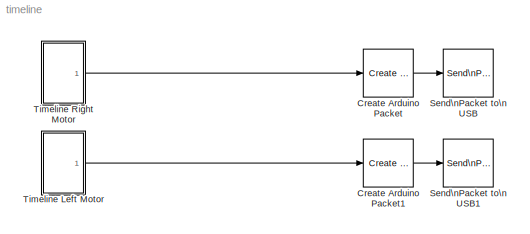
MODEL timeline
KIND model
BLOCK [Reference] Create Arduino Packet  REF=Nokia_Arduino_Blocks/Create Arduino Packet
  FunctionWithSeparateData = off
  Ports = [1, 1]
  RTWMemSecDataConstants = Inherit from model
  RTWMemSecDataInternal = Inherit from model
  RTWMemSecDataParameters = Inherit from model
  RTWMemSecFuncExecute = Inherit from model
  RTWMemSecFuncInitTerm = Inherit from model
  SID = 28
  ShowPortLabels = FromPortIcon
  SourceBlock = Nokia_Arduino_Blocks/Create Arduino Packet
  SystemSampleTime = -1
  command = Motor
  numPort = 1
  rOrW = Write
BLOCK [Reference] Create Arduino Packet1  REF=Nokia_Arduino_Blocks/Create Arduino Packet
  FunctionWithSeparateData = off
  Ports = [1, 1]
  RTWMemSecDataConstants = Inherit from model
  RTWMemSecDataInternal = Inherit from model
  RTWMemSecDataParameters = Inherit from model
  RTWMemSecFuncExecute = Inherit from model
  RTWMemSecFuncInitTerm = Inherit from model
  SID = 50
  ShowPortLabels = FromPortIcon
  SourceBlock = Nokia_Arduino_Blocks/Create Arduino Packet
  SystemSampleTime = -1
  command = Motor
  numPort = 2
  rOrW = Write
BLOCK [Reference] Send\nPacket to\n USB  REF=Nokia_Arduino_Blocks/Send\nPacket to\n USB
  Ports = [1]
  SID = 29
  SourceBlock = Nokia_Arduino_Blocks/Send\nPacket to\n USB
BLOCK [Reference] Send\nPacket to\n USB1  REF=Nokia_Arduino_Blocks/Send\nPacket to\n USB
  Ports = [1]
  SID = 51
  SourceBlock = Nokia_Arduino_Blocks/Send\nPacket to\n USB
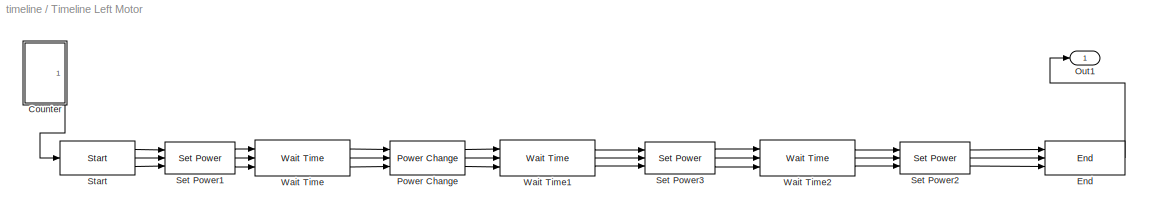
BLOCK [SubSystem] Timeline Left Motor
  FunctionWithSeparateData = off
  MaskHideContents = off
  MinAlgLoopOccurrences = off
  Opaque = off
  Ports = [0, 1]
  PropExecContextOutsideSubsystem = off
  RTWSystemCode = Auto
  RequestExecContextInheritance = off
  SID = 34
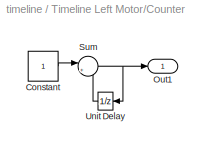
BLOCK [SubSystem] Timeline Left Motor/Counter
  FunctionWithSeparateData = off
  MaskHideContents = off
  MinAlgLoopOccurrences = off
  Opaque = off
  Ports = [0, 1]
  PropExecContextOutsideSubsystem = off
  RTWSystemCode = Auto
  RequestExecContextInheritance = off
  SID = 35
BLOCK [Constant] Timeline Left Motor/Counter/Constant
  OutDataType = fixdt(1, 16)
  OutScaling = 2^0
  SID = 36
BLOCK [Outport] Timeline Left Motor/Counter/Out1
  IconDisplay = Port number
  SID = 39
BLOCK [Sum] Timeline Left Motor/Counter/Sum
  IconShape = round
  InputSameDT = off
  Inputs = |++
  OutDataType = fixdt(1, 16)
  OutDataTypeMode = Inherit via internal rule
  OutDataTypeStr = Inherit: Inherit via internal rule
  OutScaling = 2^0
  Ports = [2, 1]
  SID = 37
  SaturateOnIntegerOverflow = off
BLOCK [UnitDelay] Timeline Left Motor/Counter/Unit Delay
  SID = 38
  SampleTime = -1
BLOCK [Reference] Timeline Left Motor/End  REF=nxt_Lib/End
  FunctionWithSeparateData = off
  Ports = [3, 1]
  RTWMemSecDataConstants = Inherit from model
  RTWMemSecDataInternal = Inherit from model
  RTWMemSecDataParameters = Inherit from model
  RTWMemSecFuncExecute = Inherit from model
  RTWMemSecFuncInitTerm = Inherit from model
  SID = 40
  ShowPortLabels = FromPortIcon
  SourceBlock = nxt_Lib/End
  SourceType = End Program
  SystemSampleTime = -1
BLOCK [Outport] Timeline Left Motor/Out1
  IconDisplay = Port number
  SID = 49
BLOCK [Reference] Timeline Left Motor/Power Change  REF=nxt_Lib/Power Change
  FunctionWithSeparateData = off
  Ports = [3, 3]
  RTWMemSecDataConstants = Inherit from model
  RTWMemSecDataInternal = Inherit from model
  RTWMemSecDataParameters = Inherit from model
  RTWMemSecFuncExecute = Inherit from model
  RTWMemSecFuncInitTerm = Inherit from model
  SID = 41
  ShowPortLabels = FromPortIcon
  SourceBlock = nxt_Lib/Power Change
  SourceType = Power Change
  SystemSampleTime = -1
  c = -255
BLOCK [Reference] Timeline Left Motor/Set Power1  REF=nxt_Lib/Set Power
  FunctionWithSeparateData = off
  Ports = [3, 3]
  RTWMemSecDataConstants = Inherit from model
  RTWMemSecDataInternal = Inherit from model
  RTWMemSecDataParameters = Inherit from model
  RTWMemSecFuncExecute = Inherit from model
  RTWMemSecFuncInitTerm = Inherit from model
  SID = 42
  ShowPortLabels = FromPortIcon
  SourceBlock = nxt_Lib/Set Power
  SourceType = Set Power
  SystemSampleTime = -1
  a = 512
BLOCK [Reference] Timeline Left Motor/Set Power2  REF=nxt_Lib/Set Power
  FunctionWithSeparateData = off
  Ports = [3, 3]
  RTWMemSecDataConstants = Inherit from model
  RTWMemSecDataInternal = Inherit from model
  RTWMemSecDataParameters = Inherit from model
  RTWMemSecFuncExecute = Inherit from model
  RTWMemSecFuncInitTerm = Inherit from model
  SID = 43
  ShowPortLabels = FromPortIcon
  SourceBlock = nxt_Lib/Set Power
  SourceType = Set Power
  SystemSampleTime = -1
  a = 255
BLOCK [Reference] Timeline Left Motor/Set Power3  REF=nxt_Lib/Set Power
  FunctionWithSeparateData = off
  Ports = [3, 3]
  RTWMemSecDataConstants = Inherit from model
  RTWMemSecDataInternal = Inherit from model
  RTWMemSecDataParameters = Inherit from model
  RTWMemSecFuncExecute = Inherit from model
  RTWMemSecFuncInitTerm = Inherit from model
  SID = 44
  ShowPortLabels = FromPortIcon
  SourceBlock = nxt_Lib/Set Power
  SourceType = Set Power
  SystemSampleTime = -1
  a = 512
BLOCK [Reference] Timeline Left Motor/Start  REF=nxt_Lib/Start
  FunctionWithSeparateData = off
  Ports = [1, 3]
  RTWMemSecDataConstants = Inherit from model
  RTWMemSecDataInternal = Inherit from model
  RTWMemSecDataParameters = Inherit from model
  RTWMemSecFuncExecute = Inherit from model
  RTWMemSecFuncInitTerm = Inherit from model
  SID = 45
  ShowPortLabels = FromPortIcon
  SourceBlock = nxt_Lib/Start
  SourceType = Start
  SystemSampleTime = -1
BLOCK [Reference] Timeline Left Motor/Wait Time  REF=nxt_Lib/Wait Time
  FunctionWithSeparateData = off
  Ports = [3, 3]
  RTWMemSecDataConstants = Inherit from model
  RTWMemSecDataInternal = Inherit from model
  RTWMemSecDataParameters = Inherit from model
  RTWMemSecFuncExecute = Inherit from model
  RTWMemSecFuncInitTerm = Inherit from model
  SID = 46
  ShowPortLabels = FromPortIcon
  SourceBlock = nxt_Lib/Wait Time
  SourceType = Wait Time
  SystemSampleTime = -1
  b = 4
BLOCK [Reference] Timeline Left Motor/Wait Time1  REF=nxt_Lib/Wait Time
  FunctionWithSeparateData = off
  Ports = [3, 3]
  RTWMemSecDataConstants = Inherit from model
  RTWMemSecDataInternal = Inherit from model
  RTWMemSecDataParameters = Inherit from model
  RTWMemSecFuncExecute = Inherit from model
  RTWMemSecFuncInitTerm = Inherit from model
  SID = 47
  ShowPortLabels = FromPortIcon
  SourceBlock = nxt_Lib/Wait Time
  SourceType = Wait Time
  SystemSampleTime = -1
  b = 1
BLOCK [Reference] Timeline Left Motor/Wait Time2  REF=nxt_Lib/Wait Time
  FunctionWithSeparateData = off
  Ports = [3, 3]
  RTWMemSecDataConstants = Inherit from model
  RTWMemSecDataInternal = Inherit from model
  RTWMemSecDataParameters = Inherit from model
  RTWMemSecFuncExecute = Inherit from model
  RTWMemSecFuncInitTerm = Inherit from model
  SID = 48
  ShowPortLabels = FromPortIcon
  SourceBlock = nxt_Lib/Wait Time
  SourceType = Wait Time
  SystemSampleTime = -1
  b = 3
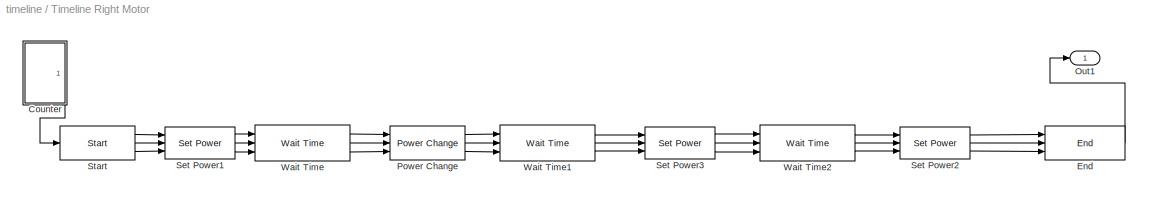
BLOCK [SubSystem] Timeline Right Motor
  FunctionWithSeparateData = off
  MaskHideContents = off
  MinAlgLoopOccurrences = off
  Opaque = off
  Ports = [0, 1]
  PropExecContextOutsideSubsystem = off
  RTWSystemCode = Auto
  RequestExecContextInheritance = off
  SID = 8
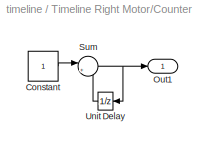
BLOCK [SubSystem] Timeline Right Motor/Counter
  FunctionWithSeparateData = off
  MaskHideContents = off
  MinAlgLoopOccurrences = off
  Opaque = off
  Ports = [0, 1]
  PropExecContextOutsideSubsystem = off
  RTWSystemCode = Auto
  RequestExecContextInheritance = off
  SID = 20
BLOCK [Constant] Timeline Right Motor/Counter/Constant
  OutDataType = fixdt(1, 16)
  OutScaling = 2^0
  SID = 21
BLOCK [Outport] Timeline Right Motor/Counter/Out1
  IconDisplay = Port number
  SID = 24
BLOCK [Sum] Timeline Right Motor/Counter/Sum
  IconShape = round
  InputSameDT = off
  Inputs = |++
  OutDataType = fixdt(1, 16)
  OutDataTypeMode = Inherit via internal rule
  OutDataTypeStr = Inherit: Inherit via internal rule
  OutScaling = 2^0
  Ports = [2, 1]
  SID = 22
  SaturateOnIntegerOverflow = off
BLOCK [UnitDelay] Timeline Right Motor/Counter/Unit Delay
  SID = 23
  SampleTime = -1
BLOCK [Reference] Timeline Right Motor/End  REF=nxt_Lib/End
  FunctionWithSeparateData = off
  Ports = [3, 1]
  RTWMemSecDataConstants = Inherit from model
  RTWMemSecDataInternal = Inherit from model
  RTWMemSecDataParameters = Inherit from model
  RTWMemSecFuncExecute = Inherit from model
  RTWMemSecFuncInitTerm = Inherit from model
  SID = 27
  ShowPortLabels = FromPortIcon
  SourceBlock = nxt_Lib/End
  SourceType = End Program
  SystemSampleTime = -1
BLOCK [Outport] Timeline Right Motor/Out1
  IconDisplay = Port number
  SID = 19
BLOCK [Reference] Timeline Right Motor/Power Change  REF=nxt_Lib/Power Change
  FunctionWithSeparateData = off
  Ports = [3, 3]
  RTWMemSecDataConstants = Inherit from model
  RTWMemSecDataInternal = Inherit from model
  RTWMemSecDataParameters = Inherit from model
  RTWMemSecFuncExecute = Inherit from model
  RTWMemSecFuncInitTerm = Inherit from model
  SID = 11
  ShowPortLabels = FromPortIcon
  SourceBlock = nxt_Lib/Power Change
  SourceType = Power Change
  SystemSampleTime = -1
  c = -100
BLOCK [Reference] Timeline Right Motor/Set Power1  REF=nxt_Lib/Set Power
  FunctionWithSeparateData = off
  Ports = [3, 3]
  RTWMemSecDataConstants = Inherit from model
  RTWMemSecDataInternal = Inherit from model
  RTWMemSecDataParameters = Inherit from model
  RTWMemSecFuncExecute = Inherit from model
  RTWMemSecFuncInitTerm = Inherit from model
  SID = 31
  ShowPortLabels = FromPortIcon
  SourceBlock = nxt_Lib/Set Power
  SourceType = Set Power
  SystemSampleTime = -1
  a = 512
BLOCK [Reference] Timeline Right Motor/Set Power2  REF=nxt_Lib/Set Power
  FunctionWithSeparateData = off
  Ports = [3, 3]
  RTWMemSecDataConstants = Inherit from model
  RTWMemSecDataInternal = Inherit from model
  RTWMemSecDataParameters = Inherit from model
  RTWMemSecFuncExecute = Inherit from model
  RTWMemSecFuncInitTerm = Inherit from model
  SID = 26
  ShowPortLabels = FromPortIcon
  SourceBlock = nxt_Lib/Set Power
  SourceType = Set Power
  SystemSampleTime = -1
  a = 255
BLOCK [Reference] Timeline Right Motor/Set Power3  REF=nxt_Lib/Set Power
  FunctionWithSeparateData = off
  Ports = [3, 3]
  RTWMemSecDataConstants = Inherit from model
  RTWMemSecDataInternal = Inherit from model
  RTWMemSecDataParameters = Inherit from model
  RTWMemSecFuncExecute = Inherit from model
  RTWMemSecFuncInitTerm = Inherit from model
  SID = 32
  ShowPortLabels = FromPortIcon
  SourceBlock = nxt_Lib/Set Power
  SourceType = Set Power
  SystemSampleTime = -1
  a = 512
BLOCK [Reference] Timeline Right Motor/Start  REF=nxt_Lib/Start
  FunctionWithSeparateData = off
  Ports = [1, 3]
  RTWMemSecDataConstants = Inherit from model
  RTWMemSecDataInternal = Inherit from model
  RTWMemSecDataParameters = Inherit from model
  RTWMemSecFuncExecute = Inherit from model
  RTWMemSecFuncInitTerm = Inherit from model
  SID = 15
  ShowPortLabels = FromPortIcon
  SourceBlock = nxt_Lib/Start
  SourceType = Start
  SystemSampleTime = -1
BLOCK [Reference] Timeline Right Motor/Wait Time  REF=nxt_Lib/Wait Time
  FunctionWithSeparateData = off
  Ports = [3, 3]
  RTWMemSecDataConstants = Inherit from model
  RTWMemSecDataInternal = Inherit from model
  RTWMemSecDataParameters = Inherit from model
  RTWMemSecFuncExecute = Inherit from model
  RTWMemSecFuncInitTerm = Inherit from model
  SID = 16
  ShowPortLabels = FromPortIcon
  SourceBlock = nxt_Lib/Wait Time
  SourceType = Wait Time
  SystemSampleTime = -1
  b = 4
BLOCK [Reference] Timeline Right Motor/Wait Time1  REF=nxt_Lib/Wait Time
  FunctionWithSeparateData = off
  Ports = [3, 3]
  RTWMemSecDataConstants = Inherit from model
  RTWMemSecDataInternal = Inherit from model
  RTWMemSecDataParameters = Inherit from model
  RTWMemSecFuncExecute = Inherit from model
  RTWMemSecFuncInitTerm = Inherit from model
  SID = 17
  ShowPortLabels = FromPortIcon
  SourceBlock = nxt_Lib/Wait Time
  SourceType = Wait Time
  SystemSampleTime = -1
  b = 1
BLOCK [Reference] Timeline Right Motor/Wait Time2  REF=nxt_Lib/Wait Time
  FunctionWithSeparateData = off
  Ports = [3, 3]
  RTWMemSecDataConstants = Inherit from model
  RTWMemSecDataInternal = Inherit from model
  RTWMemSecDataParameters = Inherit from model
  RTWMemSecFuncExecute = Inherit from model
  RTWMemSecFuncInitTerm = Inherit from model
  SID = 18
  ShowPortLabels = FromPortIcon
  SourceBlock = nxt_Lib/Wait Time
  SourceType = Wait Time
  SystemSampleTime = -1
  b = 3
LINE Create Arduino Packet1:1 -> Send\nPacket to\n USB1:1
LINE Create Arduino Packet:1 -> Send\nPacket to\n USB:1
LINE Timeline Left Motor/Counter/Constant:1 -> Timeline Left Motor/Counter/Sum:1
NET Timeline Left Motor/Counter/Sum:1 -> Timeline Left Motor/Counter/Out1:1, Timeline Left Motor/Counter/Unit Delay:1
LINE Timeline Left Motor/Counter/Unit Delay:1 -> Timeline Left Motor/Counter/Sum:2
LINE Timeline Left Motor/Counter:1 -> Timeline Left Motor/Start:1
LINE Timeline Left Motor/End:1 -> Timeline Left Motor/Out1:1
LINE Timeline Left Motor/Power Change:1 -> Timeline Left Motor/Wait Time1:1
LINE Timeline Left Motor/Power Change:2 -> Timeline Left Motor/Wait Time1:2
LINE Timeline Left Motor/Power Change:3 -> Timeline Left Motor/Wait Time1:3
LINE Timeline Left Motor/Set Power1:1 -> Timeline Left Motor/Wait Time:1
LINE Timeline Left Motor/Set Power1:2 -> Timeline Left Motor/Wait Time:2
LINE Timeline Left Motor/Set Power1:3 -> Timeline Left Motor/Wait Time:3
LINE Timeline Left Motor/Set Power2:1 -> Timeline Left Motor/End:1
LINE Timeline Left Motor/Set Power2:2 -> Timeline Left Motor/End:2
LINE Timeline Left Motor/Set Power2:3 -> Timeline Left Motor/End:3
LINE Timeline Left Motor/Set Power3:1 -> Timeline Left Motor/Wait Time2:1
LINE Timeline Left Motor/Set Power3:2 -> Timeline Left Motor/Wait Time2:2
LINE Timeline Left Motor/Set Power3:3 -> Timeline Left Motor/Wait Time2:3
LINE Timeline Left Motor/Start:1 -> Timeline Left Motor/Set Power1:1
LINE Timeline Left Motor/Start:2 -> Timeline Left Motor/Set Power1:2
LINE Timeline Left Motor/Start:3 -> Timeline Left Motor/Set Power1:3
LINE Timeline Left Motor/Wait Time1:1 -> Timeline Left Motor/Set Power3:1
LINE Timeline Left Motor/Wait Time1:2 -> Timeline Left Motor/Set Power3:2
LINE Timeline Left Motor/Wait Time1:3 -> Timeline Left Motor/Set Power3:3
LINE Timeline Left Motor/Wait Time2:1 -> Timeline Left Motor/Set Power2:1
LINE Timeline Left Motor/Wait Time2:2 -> Timeline Left Motor/Set Power2:2
LINE Timeline Left Motor/Wait Time2:3 -> Timeline Left Motor/Set Power2:3
LINE Timeline Left Motor/Wait Time:1 -> Timeline Left Motor/Power Change:1
LINE Timeline Left Motor/Wait Time:2 -> Timeline Left Motor/Power Change:2
LINE Timeline Left Motor/Wait Time:3 -> Timeline Left Motor/Power Change:3
LINE Timeline Left Motor:1 -> Create Arduino Packet1:1
LINE Timeline Right Motor/Counter/Constant:1 -> Timeline Right Motor/Counter/Sum:1
NET Timeline Right Motor/Counter/Sum:1 -> Timeline Right Motor/Counter/Out1:1, Timeline Right Motor/Counter/Unit Delay:1
LINE Timeline Right Motor/Counter/Unit Delay:1 -> Timeline Right Motor/Counter/Sum:2
LINE Timeline Right Motor/Counter:1 -> Timeline Right Motor/Start:1
LINE Timeline Right Motor/End:1 -> Timeline Right Motor/Out1:1
LINE Timeline Right Motor/Power Change:1 -> Timeline Right Motor/Wait Time1:1
LINE Timeline Right Motor/Power Change:2 -> Timeline Right Motor/Wait Time1:2
LINE Timeline Right Motor/Power Change:3 -> Timeline Right Motor/Wait Time1:3
LINE Timeline Right Motor/Set Power1:1 -> Timeline Right Motor/Wait Time:1
LINE Timeline Right Motor/Set Power1:2 -> Timeline Right Motor/Wait Time:2
LINE Timeline Right Motor/Set Power1:3 -> Timeline Right Motor/Wait Time:3
LINE Timeline Right Motor/Set Power2:1 -> Timeline Right Motor/End:1
LINE Timeline Right Motor/Set Power2:2 -> Timeline Right Motor/End:2
LINE Timeline Right Motor/Set Power2:3 -> Timeline Right Motor/End:3
LINE Timeline Right Motor/Set Power3:1 -> Timeline Right Motor/Wait Time2:1
LINE Timeline Right Motor/Set Power3:2 -> Timeline Right Motor/Wait Time2:2
LINE Timeline Right Motor/Set Power3:3 -> Timeline Right Motor/Wait Time2:3
LINE Timeline Right Motor/Start:1 -> Timeline Right Motor/Set Power1:1
LINE Timeline Right Motor/Start:2 -> Timeline Right Motor/Set Power1:2
LINE Timeline Right Motor/Start:3 -> Timeline Right Motor/Set Power1:3
LINE Timeline Right Motor/Wait Time1:1 -> Timeline Right Motor/Set Power3:1
LINE Timeline Right Motor/Wait Time1:2 -> Timeline Right Motor/Set Power3:2
LINE Timeline Right Motor/Wait Time1:3 -> Timeline Right Motor/Set Power3:3
LINE Timeline Right Motor/Wait Time2:1 -> Timeline Right Motor/Set Power2:1
LINE Timeline Right Motor/Wait Time2:2 -> Timeline Right Motor/Set Power2:2
LINE Timeline Right Motor/Wait Time2:3 -> Timeline Right Motor/Set Power2:3
LINE Timeline Right Motor/Wait Time:1 -> Timeline Right Motor/Power Change:1
LINE Timeline Right Motor/Wait Time:2 -> Timeline Right Motor/Power Change:2
LINE Timeline Right Motor/Wait Time:3 -> Timeline Right Motor/Power Change:3
LINE Timeline Right Motor:1 -> Create Arduino Packet:1
note: NET lines group one-source signal fan-out (src -> all destinations, sorted); 1:1 wires keep LINE
